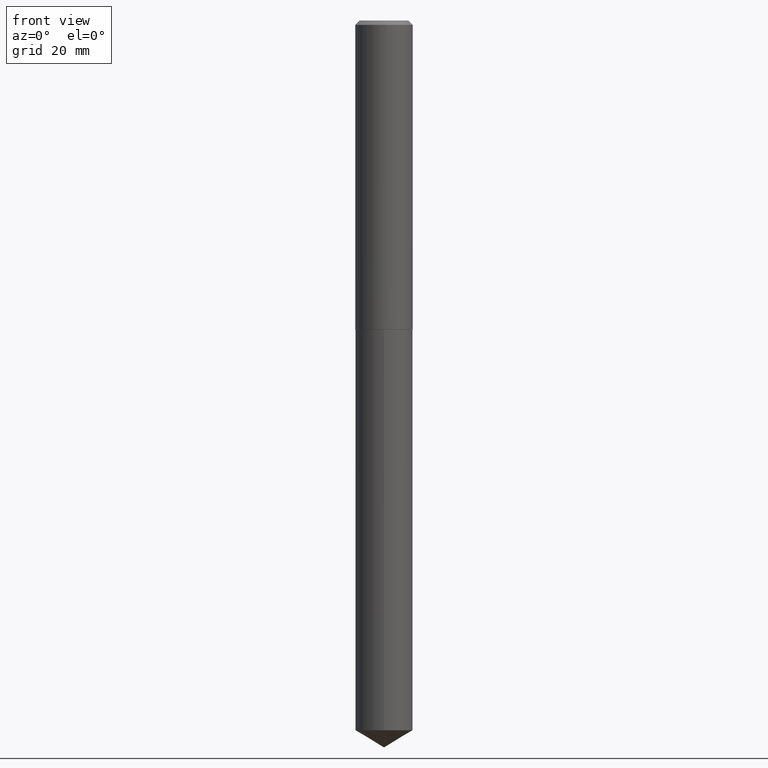
[diagram: clean part render]
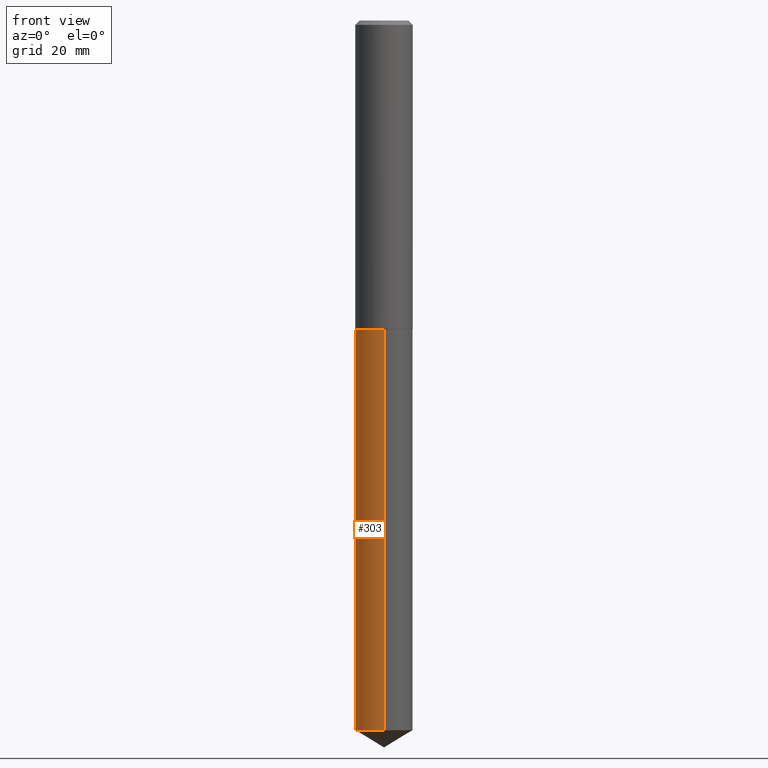
[diagram: same view with one face highlighted and labeled with its STEP entity id]
A machine part, front view. The second image highlights one B-rep face of the part: STEP entity #303.
In plain terms, the highlighted cylindrical surface (edge-blend (fillet) strip) has radius 5.2502 mm, axis along (-0, 0, 1).
Its self-contained STEP definition (entity closure, byte-faithful):
#7 = AXIS2_PLACEMENT_3D ( 'NONE', #133, #169, #319 ) ;
#25 = EDGE_CURVE ( 'NONE', #349, #344, #313, .T. ) ;
#28 = AXIS2_PLACEMENT_3D ( 'NONE', #132, #257, #222 ) ;
#32 = CARTESIAN_POINT ( 'NONE',  ( 1.468691834816181282E-15, 0.2066999999999922510, -2.224400000000001487 ) ) ;
#45 = CARTESIAN_POINT ( 'NONE',  ( -1.443378385477626181E-15, -0.2067000000000178694, -5.112002110047003001 ) ) ;
#52 = DIRECTION ( 'NONE',  ( -6.982962677686265133E-15, -1.000000000000000000, 5.286595053051307336E-15 ) ) ;
#59 = ORIENTED_EDGE ( 'NONE', *, *, #25, .F. ) ;
#71 = DIRECTION ( 'NONE',  ( -2.445583999256879801E-29, 3.491316375808027033E-15, 1.000000000000000000 ) ) ;
#104 = CARTESIAN_POINT ( 'NONE',  ( 1.468691834816251885E-15, 0.2066999999999821203, -5.112002110047005665 ) ) ;
#105 = CARTESIAN_POINT ( 'NONE',  ( 1.250157432902957539E-28, -1.784798362374761104E-14, -5.112002110047003889 ) ) ;
#110 = EDGE_CURVE ( 'NONE', #349, #216, #158, .T. ) ;
#132 = CARTESIAN_POINT ( 'NONE',  ( 5.439700812478219136E-29, -7.766451090122694310E-15, -2.224400000000000599 ) ) ;
#133 = CARTESIAN_POINT ( 'NONE',  ( 5.439700812478219136E-29, -7.766451090122694310E-15, -2.224400000000000599 ) ) ;
#147 = CIRCLE ( 'NONE', #28, 0.2067000000000000226 ) ;
#151 = DIRECTION ( 'NONE',  ( -2.445583999256879801E-29, 3.491316375808027033E-15, 1.000000000000000000 ) ) ;
#158 = CIRCLE ( 'NONE', #274, 0.2067000000000000226 ) ;
#161 = LINE ( 'NONE', #370, #244 ) ;
#169 = DIRECTION ( 'NONE',  ( -2.445583999256879801E-29, 3.491316375808027033E-15, 1.000000000000000000 ) ) ;
#173 = CARTESIAN_POINT ( 'NONE',  ( 1.468691834816252279E-15, 0.2066999999999922510, -2.224400000000001487 ) ) ;
#178 = CARTESIAN_POINT ( 'NONE',  ( -1.443378385477696981E-15, -0.2067000000000077664, -2.224399999999999711 ) ) ;
#179 = EDGE_CURVE ( 'NONE', #216, #381, #161, .T. ) ;
#195 = CYLINDRICAL_SURFACE ( 'NONE', #7, 0.2067000000000000226 ) ;
#213 = ORIENTED_EDGE ( 'NONE', *, *, #250, .F. ) ;
#216 = VERTEX_POINT ( 'NONE', #45 ) ;
#222 = DIRECTION ( 'NONE',  ( -6.982962677686265133E-15, -1.000000000000000000, 3.964946289788480107E-15 ) ) ;
#233 = EDGE_LOOP ( 'NONE', ( #59, #390, #267, #213 ) ) ;
#241 = DIRECTION ( 'NONE',  ( -2.445583999256879801E-29, 3.491316375808027033E-15, 1.000000000000000000 ) ) ;
#244 = VECTOR ( 'NONE', #71, 39.37007874015748143 ) ;
#250 = EDGE_CURVE ( 'NONE', #344, #381, #147, .T. ) ;
#257 = DIRECTION ( 'NONE',  ( -2.445583999256879801E-29, 3.491316375808027033E-15, 1.000000000000000000 ) ) ;
#267 = ORIENTED_EDGE ( 'NONE', *, *, #179, .T. ) ;
#274 = AXIS2_PLACEMENT_3D ( 'NONE', #105, #241, #52 ) ;
#303 = ADVANCED_FACE ( 'NONE', ( #373 ), #195, .T. ) ;
#313 = LINE ( 'NONE', #32, #336 ) ;
#319 = DIRECTION ( 'NONE',  ( -6.982962677686265133E-15, -1.000000000000000000, 3.964946289788480107E-15 ) ) ;
#336 = VECTOR ( 'NONE', #151, 39.37007874015748143 ) ;
#344 = VERTEX_POINT ( 'NONE', #173 ) ;
#349 = VERTEX_POINT ( 'NONE', #104 ) ;
#370 = CARTESIAN_POINT ( 'NONE',  ( -1.443378385477696981E-15, -0.2067000000000077664, -2.224399999999999711 ) ) ;
#373 = FACE_OUTER_BOUND ( 'NONE', #233, .T. ) ;
#381 = VERTEX_POINT ( 'NONE', #178 ) ;
#390 = ORIENTED_EDGE ( 'NONE', *, *, #110, .T. ) ;